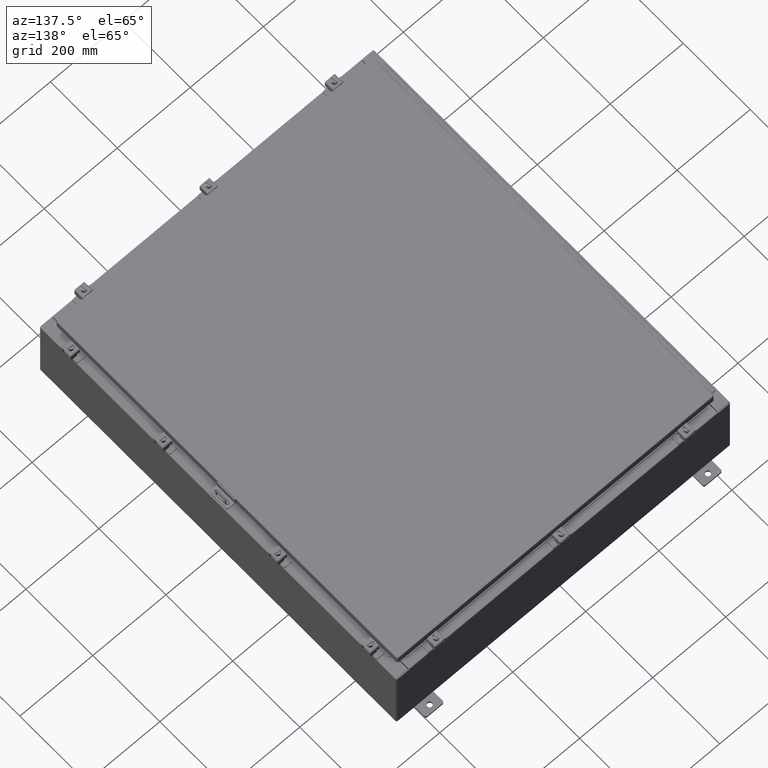
[diagram: clean part render]
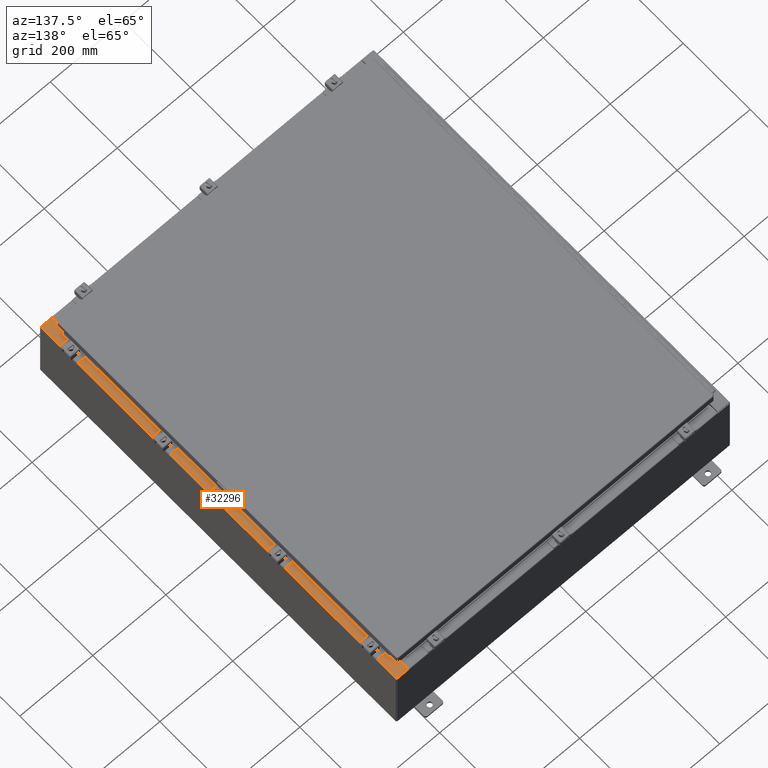
[diagram: same view with one face highlighted and labeled with its STEP entity id]
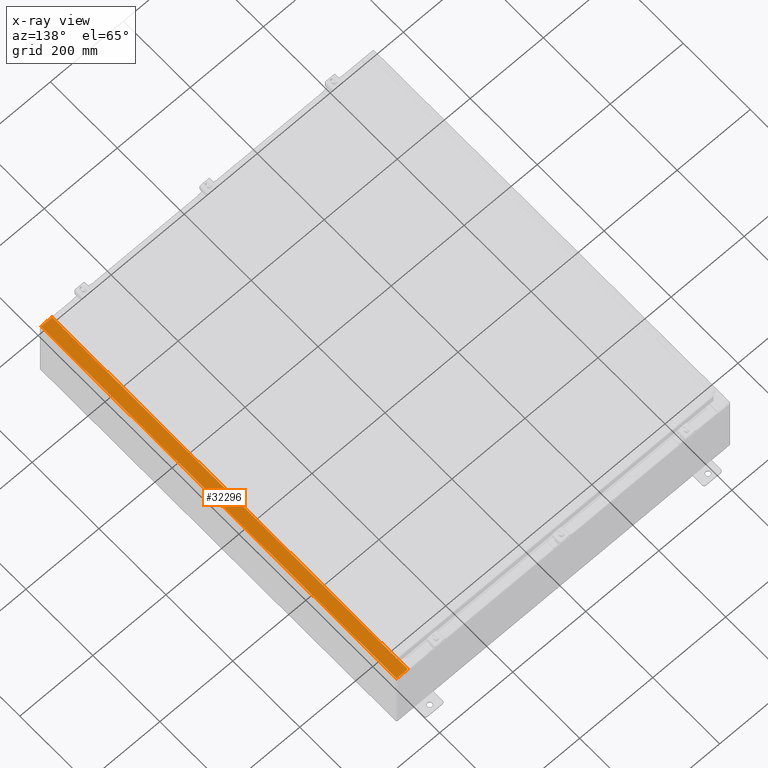
[diagram: x-ray of the same camera — body ghosted, the highlighted face saturated]
A machine part, auxiliary view. The second image highlights one B-rep face of the part: STEP entity #32296.
The next image is the same camera in x-ray: the body ghosted, the highlighted face saturated — about 0% of this face is hidden behind the body in this view.
In plain terms, the highlighted planar face has unit normal (-0, -0, -1).
Its self-contained STEP definition (entity closure, byte-faithful):
#609 = VECTOR ( 'NONE', #42065, 39.37007874015748100 ) ;
#1223 = AXIS2_PLACEMENT_3D ( 'NONE', #11458, #11618, #38353 ) ;
#1304 = EDGE_CURVE ( 'NONE', #40279, #26087, #36278, .T. ) ;
#1326 = CIRCLE ( 'NONE', #44419, 0.01867499999999949400 ) ;
#1386 = CARTESIAN_POINT ( 'NONE',  ( 16.69970000000003200, -19.63110000000000000, 7.925300000000008900 ) ) ;
#2292 = ORIENTED_EDGE ( 'NONE', *, *, #4840, .F. ) ;
#2731 = VERTEX_POINT ( 'NONE', #9937 ) ;
#2835 = DIRECTION ( 'NONE',  ( 0.0000000000000000000, -1.000000000000000000, 2.611047864225856100E-017 ) ) ;
#3150 = EDGE_CURVE ( 'NONE', #16477, #2731, #6802, .T. ) ;
#3292 = LINE ( 'NONE', #30313, #13496 ) ;
#3697 = LINE ( 'NONE', #39078, #21708 ) ;
#3810 = CARTESIAN_POINT ( 'NONE',  ( 16.69970000000003200, 20.92529999999997900, 7.925300000000008900 ) ) ;
#3909 = EDGE_CURVE ( 'NONE', #28333, #38714, #22118, .T. ) ;
#4018 = CIRCLE ( 'NONE', #49153, 0.01867499999999949400 ) ;
#4086 = LINE ( 'NONE', #40488, #23283 ) ;
#4840 = EDGE_CURVE ( 'NONE', #26087, #30569, #4018, .T. ) ;
#4967 = LINE ( 'NONE', #32945, #45658 ) ;
#5208 = DIRECTION ( 'NONE',  ( 1.000000000000000000, 4.340572780399910900E-014, 2.170286390199955400E-014 ) ) ;
#5266 = ORIENTED_EDGE ( 'NONE', *, *, #35827, .F. ) ;
#5419 = CARTESIAN_POINT ( 'NONE',  ( 16.69970000000003200, -19.63110000000000000, 7.925300000000008900 ) ) ;
#5787 = DIRECTION ( 'NONE',  ( 1.000000000000000000, 0.0000000000000000000, 0.0000000000000000000 ) ) ;
#6802 = LINE ( 'NONE', #18058, #46233 ) ;
#7697 = ORIENTED_EDGE ( 'NONE', *, *, #3909, .F. ) ;
#9752 = DIRECTION ( 'NONE',  ( 6.241167087353086200E-015, 2.611047864225855500E-017, 1.000000000000000000 ) ) ;
#9937 = CARTESIAN_POINT ( 'NONE',  ( 16.69970000000003200, 19.63109999999997500, 7.925300000000008900 ) ) ;
#11458 = CARTESIAN_POINT ( 'NONE',  ( 4.972393517341169600E-014, 2.069333763834946700E-016, 7.925300000000111900 ) ) ;
#11618 = DIRECTION ( 'NONE',  ( -6.241167087353086200E-015, -2.611047864225855500E-017, -1.000000000000000000 ) ) ;
#11896 = VECTOR ( 'NONE', #5787, 39.37007874015748100 ) ;
#12512 = CARTESIAN_POINT ( 'NONE',  ( 16.75005000000003400, 19.63109999999998200, 7.925300000000007100 ) ) ;
#13496 = VECTOR ( 'NONE', #34166, 39.37007874015748100 ) ;
#13685 = VERTEX_POINT ( 'NONE', #20942 ) ;
#14677 = CARTESIAN_POINT ( 'NONE',  ( 16.75005000000003400, -19.59375000000000000, 7.925300000000007100 ) ) ;
#14722 = VERTEX_POINT ( 'NONE', #30881 ) ;
#14783 = EDGE_CURVE ( 'NONE', #48631, #2731, #3697, .T. ) ;
#15349 = CARTESIAN_POINT ( 'NONE',  ( 16.75005000000003400, -19.59375000000000000, 7.925300000000009800 ) ) ;
#16348 = EDGE_CURVE ( 'NONE', #13685, #39996, #16749, .T. ) ;
#16477 = VERTEX_POINT ( 'NONE', #3810 ) ;
#16749 = LINE ( 'NONE', #32900, #46021 ) ;
#18058 = CARTESIAN_POINT ( 'NONE',  ( 16.69970000000003200, 2.069333763834919300E-016, 7.925300000000008900 ) ) ;
#18543 = DIRECTION ( 'NONE',  ( 6.241167087353086200E-015, 2.611047864225855500E-017, 1.000000000000000000 ) ) ;
#19583 = CARTESIAN_POINT ( 'NONE',  ( 17.91230000000002700, 20.92529999999997500, 7.925300000000000000 ) ) ;
#19754 = LINE ( 'NONE', #15349, #609 ) ;
#19924 = EDGE_CURVE ( 'NONE', #46243, #39996, #30104, .T. ) ;
#20053 = EDGE_CURVE ( 'NONE', #14722, #28333, #4967, .T. ) ;
#20942 = CARTESIAN_POINT ( 'NONE',  ( 16.69970000000003200, -20.92529999999999600, 7.925300000000009800 ) ) ;
#20965 = CARTESIAN_POINT ( 'NONE',  ( 17.91230000000002700, -20.92529999999999600, 7.925300000000000900 ) ) ;
#21467 = DIRECTION ( 'NONE',  ( -1.000000000000000000, 0.0000000000000000000, 6.241167087353087800E-015 ) ) ;
#21708 = VECTOR ( 'NONE', #31365, 39.37007874015748100 ) ;
#22118 = LINE ( 'NONE', #24897, #11896 ) ;
#23283 = VECTOR ( 'NONE', #21467, 39.37007874015748100 ) ;
#23341 = ORIENTED_EDGE ( 'NONE', *, *, #3150, .T. ) ;
#24897 = CARTESIAN_POINT ( 'NONE',  ( 16.71270000000003400, 19.59374999999998200, 7.925300000000009800 ) ) ;
#25322 = DIRECTION ( 'NONE',  ( -0.0000000000000000000, 1.000000000000000000, -0.0000000000000000000 ) ) ;
#26087 = VERTEX_POINT ( 'NONE', #33295 ) ;
#26292 = CARTESIAN_POINT ( 'NONE',  ( 16.75005000000003400, 19.59374999999998200, 7.925300000000007100 ) ) ;
#28293 = EDGE_CURVE ( 'NONE', #38714, #48631, #1326, .T. ) ;
#28333 = VERTEX_POINT ( 'NONE', #45434 ) ;
#30104 = LINE ( 'NONE', #20965, #40302 ) ;
#30313 = CARTESIAN_POINT ( 'NONE',  ( 16.69970000000003200, 2.069333763834919300E-016, 7.925300000000008900 ) ) ;
#30569 = VERTEX_POINT ( 'NONE', #14677 ) ;
#30881 = CARTESIAN_POINT ( 'NONE',  ( 16.71270000000003400, -19.59375000000000000, 7.925300000000009800 ) ) ;
#31229 = ORIENTED_EDGE ( 'NONE', *, *, #47301, .T. ) ;
#31365 = DIRECTION ( 'NONE',  ( -1.000000000000000000, 4.340572780399910900E-014, -2.170286390199955400E-014 ) ) ;
#32296 = ADVANCED_FACE ( 'NONE', ( #49311 ), #34503, .F. ) ;
#32313 = ORIENTED_EDGE ( 'NONE', *, *, #20053, .F. ) ;
#32626 = CARTESIAN_POINT ( 'NONE',  ( 16.75005000000003400, -19.61242499999999800, 7.925300000000009800 ) ) ;
#32831 = ORIENTED_EDGE ( 'NONE', *, *, #19924, .F. ) ;
#32887 = ORIENTED_EDGE ( 'NONE', *, *, #36719, .T. ) ;
#32900 = CARTESIAN_POINT ( 'NONE',  ( 4.972393517341169600E-014, -20.92529999999999600, 7.925300000000113700 ) ) ;
#32945 = CARTESIAN_POINT ( 'NONE',  ( 16.71270000000003400, -19.59375000000000000, 7.925300000000009800 ) ) ;
#33295 = CARTESIAN_POINT ( 'NONE',  ( 16.75005000000003400, -19.63109999999999600, 7.925300000000008900 ) ) ;
#33721 = ORIENTED_EDGE ( 'NONE', *, *, #1304, .F. ) ;
#34166 = DIRECTION ( 'NONE',  ( 0.0000000000000000000, -1.000000000000000000, 2.611047864225856100E-017 ) ) ;
#34503 = PLANE ( 'NONE',  #1223 ) ;
#35049 = VECTOR ( 'NONE', #5208, 39.37007874015748100 ) ;
#35827 = EDGE_CURVE ( 'NONE', #30569, #14722, #19754, .T. ) ;
#36278 = LINE ( 'NONE', #1386, #35049 ) ;
#36485 = DIRECTION ( 'NONE',  ( 1.000000000000000000, 0.0000000000000000000, 0.0000000000000000000 ) ) ;
#36719 = EDGE_CURVE ( 'NONE', #46243, #16477, #4086, .T. ) ;
#37376 = ORIENTED_EDGE ( 'NONE', *, *, #28293, .F. ) ;
#38353 = DIRECTION ( 'NONE',  ( -1.000000000000000000, 0.0000000000000000000, 6.241167087353086200E-015 ) ) ;
#38714 = VERTEX_POINT ( 'NONE', #26292 ) ;
#39078 = CARTESIAN_POINT ( 'NONE',  ( 16.75005000000003400, 19.63109999999998200, 7.925300000000009800 ) ) ;
#39283 = ORIENTED_EDGE ( 'NONE', *, *, #14783, .F. ) ;
#39996 = VERTEX_POINT ( 'NONE', #45732 ) ;
#40024 = ORIENTED_EDGE ( 'NONE', *, *, #16348, .T. ) ;
#40279 = VERTEX_POINT ( 'NONE', #5419 ) ;
#40302 = VECTOR ( 'NONE', #47679, 39.37007874015748100 ) ;
#40488 = CARTESIAN_POINT ( 'NONE',  ( 4.972393517341169600E-014, 20.92529999999998600, 7.925300000000111900 ) ) ;
#41421 = CARTESIAN_POINT ( 'NONE',  ( 16.75005000000003400, 19.61242499999998000, 7.925300000000009800 ) ) ;
#42065 = DIRECTION ( 'NONE',  ( -1.000000000000000000, 0.0000000000000000000, 0.0000000000000000000 ) ) ;
#43830 = EDGE_LOOP ( 'NONE', ( #33721, #31229, #40024, #32831, #32887, #23341, #39283, #37376, #7697, #32313, #5266, #2292 ) ) ;
#44419 = AXIS2_PLACEMENT_3D ( 'NONE', #41421, #18543, #45271 ) ;
#45271 = DIRECTION ( 'NONE',  ( 1.000000000000000000, 0.0000000000000000000, 0.0000000000000000000 ) ) ;
#45434 = CARTESIAN_POINT ( 'NONE',  ( 16.71270000000003400, 19.59374999999998200, 7.925300000000009800 ) ) ;
#45658 = VECTOR ( 'NONE', #25322, 39.37007874015748100 ) ;
#45732 = CARTESIAN_POINT ( 'NONE',  ( 17.91230000000002700, -20.92529999999999600, 7.925300000000000900 ) ) ;
#46021 = VECTOR ( 'NONE', #48284, 39.37007874015748100 ) ;
#46233 = VECTOR ( 'NONE', #2835, 39.37007874015748100 ) ;
#46243 = VERTEX_POINT ( 'NONE', #19583 ) ;
#47301 = EDGE_CURVE ( 'NONE', #40279, #13685, #3292, .T. ) ;
#47679 = DIRECTION ( 'NONE',  ( -0.0000000000000000000, -1.000000000000000000, 2.611047864225856100E-017 ) ) ;
#48284 = DIRECTION ( 'NONE',  ( 1.000000000000000000, 0.0000000000000000000, -6.241167087353087800E-015 ) ) ;
#48631 = VERTEX_POINT ( 'NONE', #12512 ) ;
#49153 = AXIS2_PLACEMENT_3D ( 'NONE', #32626, #9752, #36485 ) ;
#49311 = FACE_OUTER_BOUND ( 'NONE', #43830, .T. ) ;